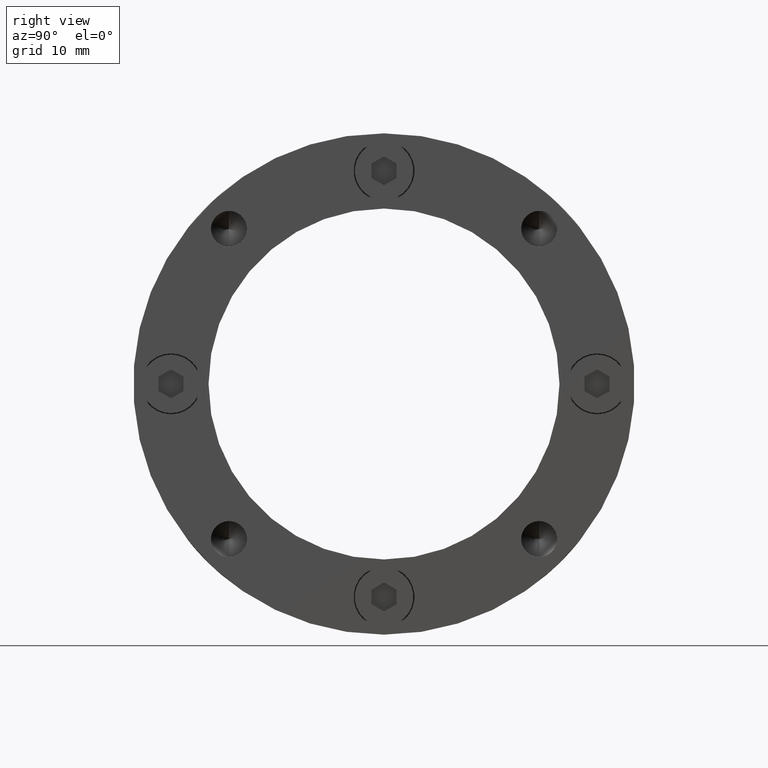
[diagram: clean part render]
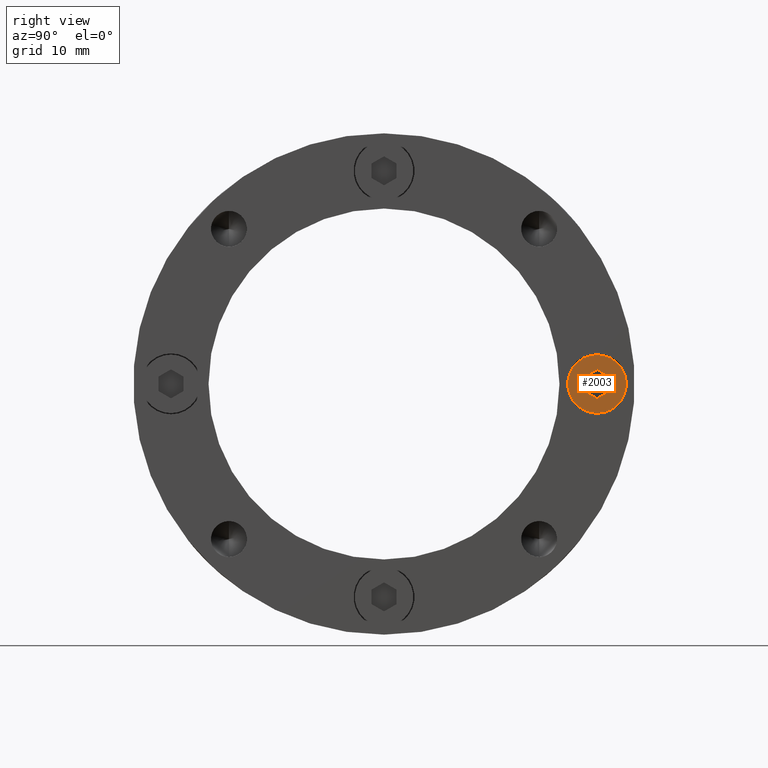
[diagram: same view with one face highlighted and labeled with its STEP entity id]
A machine part, right view. The second image highlights one B-rep face of the part: STEP entity #2003.
In plain terms, the highlighted planar face has unit normal (1, 0, 0).
Its self-contained STEP definition (entity closure, byte-faithful):
#16 = FACE_BOUND ( 'NONE', #1156, .T. ) ;
#208 = ORIENTED_EDGE ( 'NONE', *, *, #3449, .T. ) ;
#211 = ORIENTED_EDGE ( 'NONE', *, *, #1678, .F. ) ;
#212 = ORIENTED_EDGE ( 'NONE', *, *, #1680, .F. ) ;
#214 = ORIENTED_EDGE ( 'NONE', *, *, #1679, .F. ) ;
#217 = ORIENTED_EDGE ( 'NONE', *, *, #1677, .F. ) ;
#218 = ORIENTED_EDGE ( 'NONE', *, *, #1683, .F. ) ;
#219 = ORIENTED_EDGE ( 'NONE', *, *, #1682, .F. ) ;
#235 = VERTEX_POINT ( 'NONE', #2424 ) ;
#236 = ORIENTED_EDGE ( 'NONE', *, *, #1671, .T. ) ;
#240 = CIRCLE ( 'NONE', #3432, 3.500000000000000000 ) ;
#258 = LINE ( 'NONE', #2837, #265 ) ;
#259 = LINE ( 'NONE', #2835, #267 ) ;
#261 = LINE ( 'NONE', #2841, #264 ) ;
#263 = LINE ( 'NONE', #2836, #270 ) ;
#264 = VECTOR ( 'NONE', #2842, 1000.000000000000000 ) ;
#265 = VECTOR ( 'NONE', #2834, 1000.000000000000000 ) ;
#267 = VECTOR ( 'NONE', #2845, 1000.000000000000000 ) ;
#269 = LINE ( 'NONE', #2848, #283 ) ;
#270 = VECTOR ( 'NONE', #2843, 1000.000000000000000 ) ;
#282 = LINE ( 'NONE', #2846, #288 ) ;
#283 = VECTOR ( 'NONE', #2852, 1000.000000000000100 ) ;
#288 = VECTOR ( 'NONE', #2844, 1000.000000000000000 ) ;
#330 = FACE_OUTER_BOUND ( 'NONE', #1172, .T. ) ;
#657 = CARTESIAN_POINT ( 'NONE',  ( 0.0000000000000000000, 4.000000000000000000, 0.0000000000000000000 ) ) ;
#658 = DIRECTION ( 'NONE',  ( 0.0000000000000000000, 1.000000000000000000, 0.0000000000000000000 ) ) ;
#659 = DIRECTION ( 'NONE',  ( 0.0000000000000000000, 0.0000000000000000000, 1.000000000000000000 ) ) ;
#960 = AXIS2_PLACEMENT_3D ( 'NONE', #3169, #3174, #3175 ) ;
#1156 = EDGE_LOOP ( 'NONE', ( #217, #211, #214, #218, #219, #212 ) ) ;
#1172 = EDGE_LOOP ( 'NONE', ( #236, #208 ) ) ;
#1508 = VERTEX_POINT ( 'NONE', #2762 ) ;
#1510 = VERTEX_POINT ( 'NONE', #2763 ) ;
#1511 = VERTEX_POINT ( 'NONE', #2765 ) ;
#1513 = VERTEX_POINT ( 'NONE', #2758 ) ;
#1575 = VERTEX_POINT ( 'NONE', #2756 ) ;
#1580 = VERTEX_POINT ( 'NONE', #2767 ) ;
#1581 = VERTEX_POINT ( 'NONE', #2774 ) ;
#1671 = EDGE_CURVE ( 'NONE', #235, #1581, #240, .T. ) ;
#1677 = EDGE_CURVE ( 'NONE', #1508, #1575, #258, .T. ) ;
#1678 = EDGE_CURVE ( 'NONE', #1513, #1508, #261, .T. ) ;
#1679 = EDGE_CURVE ( 'NONE', #1511, #1513, #263, .T. ) ;
#1680 = EDGE_CURVE ( 'NONE', #1575, #1510, #259, .T. ) ;
#1682 = EDGE_CURVE ( 'NONE', #1510, #1580, #282, .T. ) ;
#1683 = EDGE_CURVE ( 'NONE', #1580, #1511, #269, .T. ) ;
#2003 = ADVANCED_FACE ( 'NONE', ( #16, #330 ), #3172, .T. ) ;
#2344 = CIRCLE ( 'NONE', #2684, 3.500000000000000000 ) ;
#2424 = CARTESIAN_POINT ( 'NONE',  ( 0.0000000000000000000, 4.000000000000000000, -3.500000000000000000 ) ) ;
#2684 = AXIS2_PLACEMENT_3D ( 'NONE', #657, #658, #659 ) ;
#2756 = CARTESIAN_POINT ( 'NONE',  ( -1.084202172485504400E-016, 4.000000000000000000, -1.732050807568877200 ) ) ;
#2758 = CARTESIAN_POINT ( 'NONE',  ( 1.500000000000000000, 4.000000000000000000, 0.8660254037844387100 ) ) ;
#2762 = CARTESIAN_POINT ( 'NONE',  ( 1.499999999999999800, 4.000000000000000000, -0.8660254037844389300 ) ) ;
#2763 = CARTESIAN_POINT ( 'NONE',  ( -1.499999999999999800, 4.000000000000000000, -0.8660254037844386000 ) ) ;
#2765 = CARTESIAN_POINT ( 'NONE',  ( 4.046263255784118500E-016, 4.000000000000000000, 1.732050807568877400 ) ) ;
#2767 = CARTESIAN_POINT ( 'NONE',  ( -1.499999999999999100, 4.000000000000000000, 0.8660254037844393700 ) ) ;
#2774 = CARTESIAN_POINT ( 'NONE',  ( 4.286263797015736600E-016, 4.000000000000000000, 3.500000000000000000 ) ) ;
#2821 = CARTESIAN_POINT ( 'NONE',  ( 0.0000000000000000000, 4.000000000000000000, 0.0000000000000000000 ) ) ;
#2822 = DIRECTION ( 'NONE',  ( 0.0000000000000000000, 1.000000000000000000, 0.0000000000000000000 ) ) ;
#2823 = DIRECTION ( 'NONE',  ( 0.0000000000000000000, 0.0000000000000000000, 1.000000000000000000 ) ) ;
#2834 = DIRECTION ( 'NONE',  ( -0.8660254037844387100, 0.0000000000000000000, -0.4999999999999998300 ) ) ;
#2835 = CARTESIAN_POINT ( 'NONE',  ( -1.767567020076689400E-016, 4.000000000000000000, -1.732050807568877200 ) ) ;
#2836 = CARTESIAN_POINT ( 'NONE',  ( 4.046263255784118500E-016, 4.000000000000000000, 1.732050807568877400 ) ) ;
#2837 = CARTESIAN_POINT ( 'NONE',  ( 1.499999999999999800, 4.000000000000000000, -0.8660254037844389300 ) ) ;
#2841 = CARTESIAN_POINT ( 'NONE',  ( 1.500000000000000000, 4.000000000000000000, 0.8660254037844387100 ) ) ;
#2842 = DIRECTION ( 'NONE',  ( -1.251928832280965900E-016, 0.0000000000000000000, -1.000000000000000000 ) ) ;
#2843 = DIRECTION ( 'NONE',  ( 0.8660254037844386000, 0.0000000000000000000, -0.5000000000000001100 ) ) ;
#2844 = DIRECTION ( 'NONE',  ( 3.755786496842897100E-016, 0.0000000000000000000, 1.000000000000000000 ) ) ;
#2845 = DIRECTION ( 'NONE',  ( -0.8660254037844386000, 0.0000000000000000000, 0.5000000000000001100 ) ) ;
#2846 = CARTESIAN_POINT ( 'NONE',  ( -1.499999999999999800, 4.000000000000000000, -0.8660254037844386000 ) ) ;
#2848 = CARTESIAN_POINT ( 'NONE',  ( -1.499999999999999100, 4.000000000000000000, 0.8660254037844393700 ) ) ;
#2852 = DIRECTION ( 'NONE',  ( 0.8660254037844387100, 0.0000000000000000000, 0.4999999999999998300 ) ) ;
#3169 = CARTESIAN_POINT ( 'NONE',  ( 0.0000000000000000000, 4.000000000000000000, 0.0000000000000000000 ) ) ;
#3172 = PLANE ( 'NONE',  #960 ) ;
#3174 = DIRECTION ( 'NONE',  ( 0.0000000000000000000, 1.000000000000000000, 0.0000000000000000000 ) ) ;
#3175 = DIRECTION ( 'NONE',  ( 0.0000000000000000000, -0.0000000000000000000, 1.000000000000000000 ) ) ;
#3432 = AXIS2_PLACEMENT_3D ( 'NONE', #2821, #2822, #2823 ) ;
#3449 = EDGE_CURVE ( 'NONE', #1581, #235, #2344, .T. ) ;